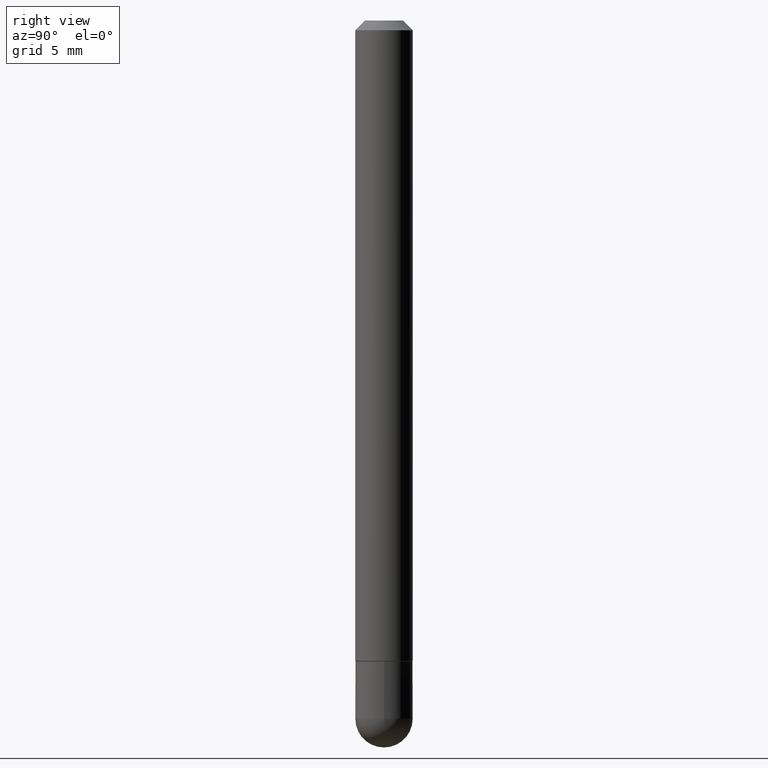
[diagram: clean part render]
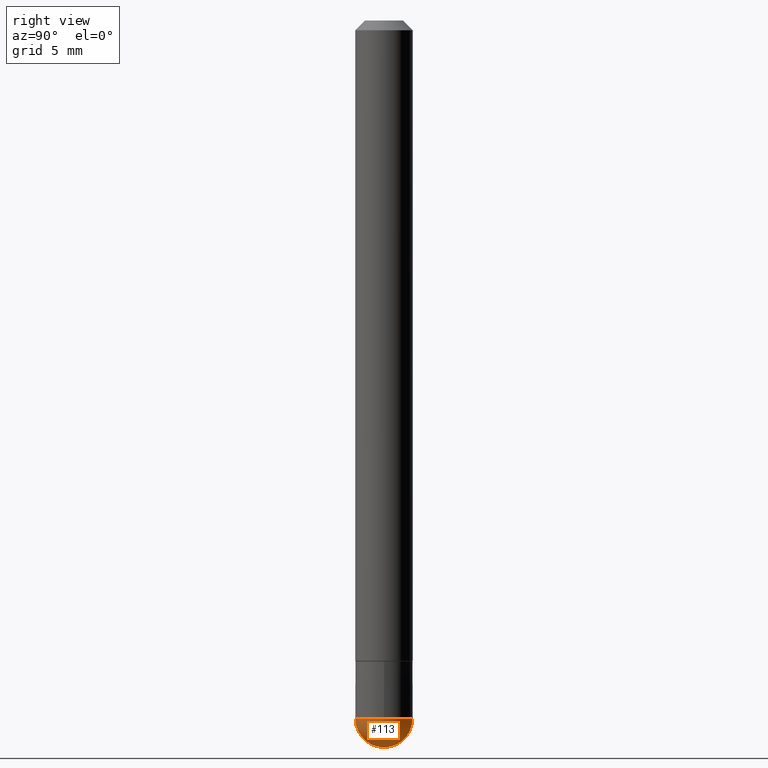
[diagram: same view with one face highlighted and labeled with its STEP entity id]
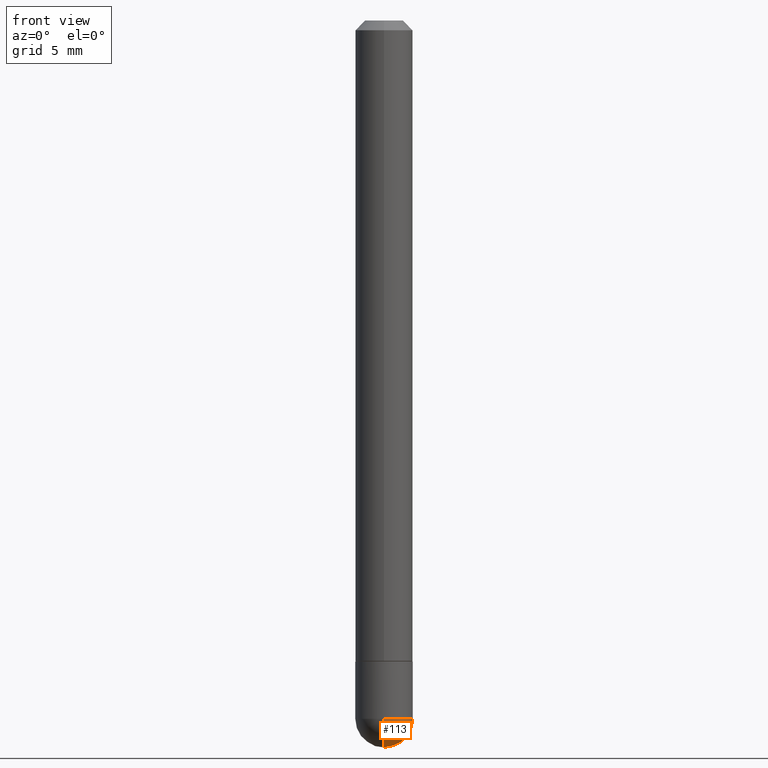
[diagram: same view with one face highlighted and labeled with its STEP entity id]
A machine part, right view. The second image highlights one B-rep face of the part: STEP entity #113.
A second angle (front view) of the same face is appended — the face is thin or edge-on in the first view.
In plain terms, the highlighted spherical surface has radius 1.4999 mm.
Its self-contained STEP definition (entity closure, byte-faithful):
#7 = AXIS2_PLACEMENT_3D ( 'NONE', #25, #106, #163 ) ;
#14 = DIRECTION ( 'NONE',  ( -1.000000000000000000, 7.105427357601001070E-15, -4.926315508542082329E-29 ) ) ;
#25 = CARTESIAN_POINT ( 'NONE',  ( 3.514260947928350449E-29, -5.017433257984542594E-15, -1.437049999999999939 ) ) ;
#27 = CIRCLE ( 'NONE', #7, 0.05905000000000000526 ) ;
#40 = DIRECTION ( 'NONE',  ( -2.445468806185136597E-29, 3.491481338843145583E-15, 1.000000000000000000 ) ) ;
#43 = DIRECTION ( 'NONE',  ( -7.105427357601001070E-15, -1.000000000000000000, 0.000000000000000000 ) ) ;
#49 = DIRECTION ( 'NONE',  ( 1.000000000000000000, -6.982962677686265922E-15, 4.883557194083112340E-29 ) ) ;
#52 = CARTESIAN_POINT ( 'NONE',  ( 0.05905000000000001914, -5.223517944009757599E-15, -1.437049999999999939 ) ) ;
#54 = DIRECTION ( 'NONE',  ( -1.000000000000000000, 6.982962677686265922E-15, -4.883557194083112340E-29 ) ) ;
#79 = CARTESIAN_POINT ( 'NONE',  ( 3.330070981488499955E-29, -5.694171829508798064E-15, -1.496100000000000207 ) ) ;
#88 = CARTESIAN_POINT ( 'NONE',  ( 3.183141170014464762E-29, -5.491615626124592102E-15, -1.437049999999999939 ) ) ;
#94 = SPHERICAL_SURFACE ( 'NONE', #377, 0.05905000000000025506 ) ;
#104 = ORIENTED_EDGE ( 'NONE', *, *, #258, .F. ) ;
#106 = DIRECTION ( 'NONE',  ( -2.445468806185136597E-29, 3.491481338843145583E-15, 1.000000000000000000 ) ) ;
#107 = AXIS2_PLACEMENT_3D ( 'NONE', #112, #40, #161 ) ;
#112 = CARTESIAN_POINT ( 'NONE',  ( 3.514260947928350449E-29, -5.017433257984542594E-15, -1.437049999999999939 ) ) ;
#113 = ADVANCED_FACE ( 'NONE', ( #120 ), #94, .T. ) ;
#120 = FACE_OUTER_BOUND ( 'NONE', #309, .T. ) ;
#160 = VERTEX_POINT ( 'NONE', #349 ) ;
#161 = DIRECTION ( 'NONE',  ( 1.000000000000000000, -6.982962677686272233E-15, 0.000000000000000000 ) ) ;
#163 = DIRECTION ( 'NONE',  ( 1.000000000000000000, -6.982962677686272233E-15, 0.000000000000000000 ) ) ;
#172 = AXIS2_PLACEMENT_3D ( 'NONE', #296, #14, #43 ) ;
#177 = DIRECTION ( 'NONE',  ( 6.982962677686266711E-15, 1.000000000000000000, 0.000000000000000000 ) ) ;
#179 = DIRECTION ( 'NONE',  ( 6.982962677686265922E-15, 1.000000000000000000, -4.626330217890349615E-15 ) ) ;
#189 = ORIENTED_EDGE ( 'NONE', *, *, #229, .T. ) ;
#193 = VERTEX_POINT ( 'NONE', #52 ) ;
#211 = VERTEX_POINT ( 'NONE', #212 ) ;
#212 = CARTESIAN_POINT ( 'NONE',  ( 4.123439461174083974E-16, 0.05904999999999487742, -1.437050000000000161 ) ) ;
#218 = CIRCLE ( 'NONE', #172, 0.05905000000000025506 ) ;
#227 = CIRCLE ( 'NONE', #107, 0.05905000000000000526 ) ;
#229 = EDGE_CURVE ( 'NONE', #318, #211, #376, .T. ) ;
#258 = EDGE_CURVE ( 'NONE', #193, #211, #27, .T. ) ;
#271 = ORIENTED_EDGE ( 'NONE', *, *, #358, .F. ) ;
#291 = EDGE_CURVE ( 'NONE', #318, #160, #218, .T. ) ;
#296 = CARTESIAN_POINT ( 'NONE',  ( 3.183141170014464762E-29, -5.491615626124592102E-15, -1.437049999999999939 ) ) ;
#309 = EDGE_LOOP ( 'NONE', ( #319, #189, #104, #271 ) ) ;
#318 = VERTEX_POINT ( 'NONE', #79 ) ;
#319 = ORIENTED_EDGE ( 'NONE', *, *, #291, .F. ) ;
#320 = AXIS2_PLACEMENT_3D ( 'NONE', #395, #49, #177 ) ;
#349 = CARTESIAN_POINT ( 'NONE',  ( -4.195754854663065087E-16, -0.05905000000000538291, -1.437049999999999716 ) ) ;
#358 = EDGE_CURVE ( 'NONE', #160, #193, #227, .T. ) ;
#376 = CIRCLE ( 'NONE', #320, 0.05905000000000025506 ) ;
#377 = AXIS2_PLACEMENT_3D ( 'NONE', #88, #54, #179 ) ;
#395 = CARTESIAN_POINT ( 'NONE',  ( 3.183141170014464762E-29, -5.491615626124592102E-15, -1.437049999999999939 ) ) ;